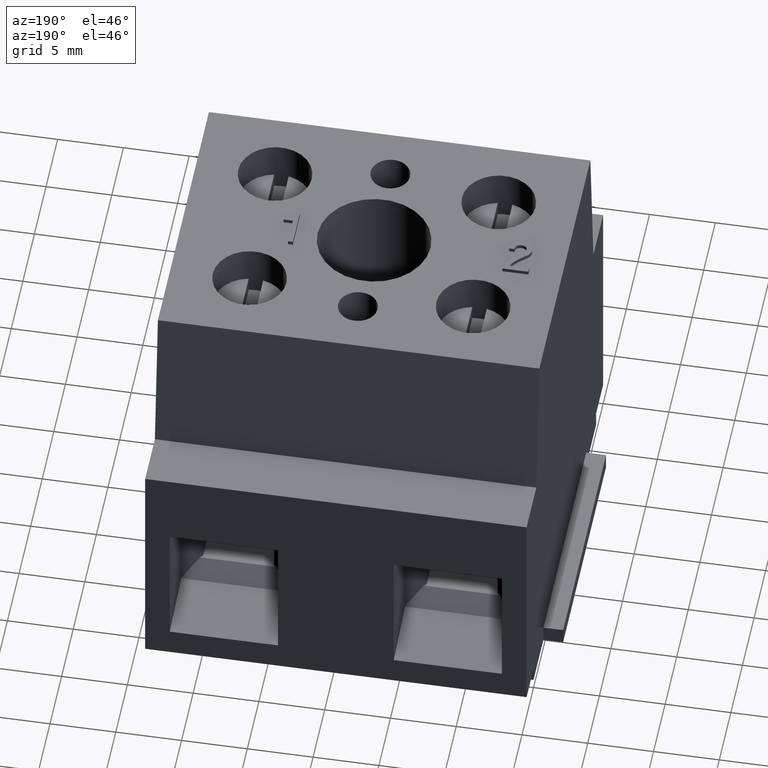
[diagram: clean part render]
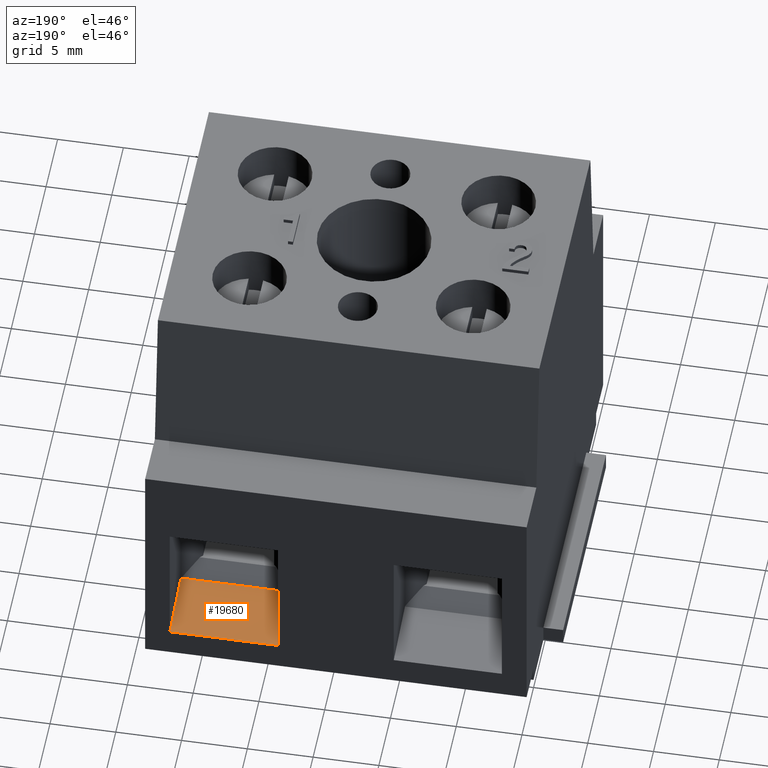
[diagram: same view with one face highlighted and labeled with its STEP entity id]
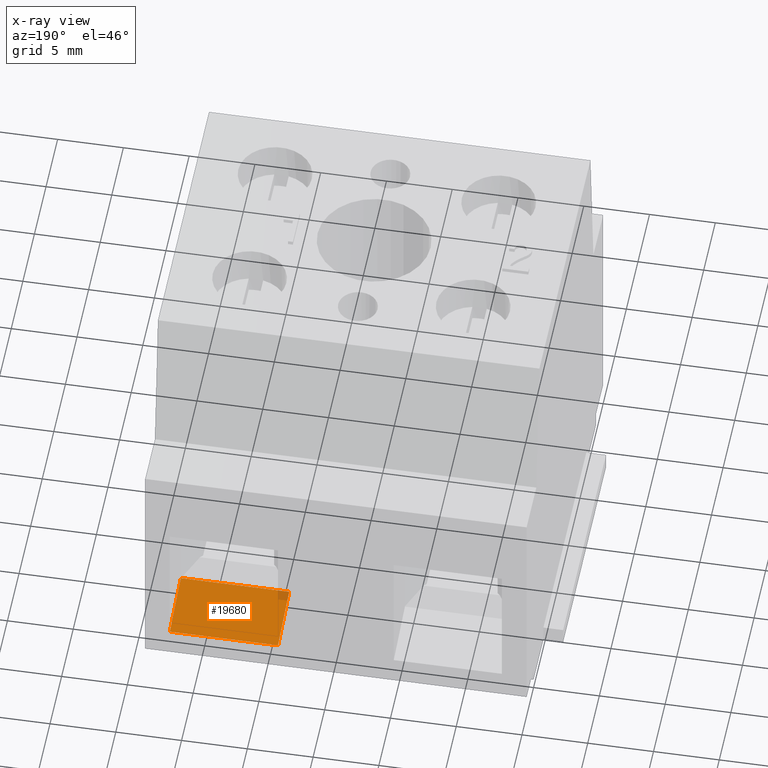
[diagram: x-ray of the same camera — body ghosted, the highlighted face saturated]
A machine part, auxiliary view. The second image highlights one B-rep face of the part: STEP entity #19680.
The next image is the same camera in x-ray: the body ghosted, the highlighted face saturated — about 2% of this face is hidden behind the body in this view.
In plain terms, the highlighted planar face has unit normal (0, -0.1736, -0.9848).
Its self-contained STEP definition (entity closure, byte-faithful):
#19290=CARTESIAN_POINT('',(44.0122471570511,7.16878338268663,
1.99999999999999));
#19300=DIRECTION('',(-0.984807753012208,-0.17364817766693,0.));
#19310=DIRECTION('',(0.17364817766693,-0.984807753012208,0.));
#19320=AXIS2_PLACEMENT_3D('',#19290,#19300,#19310);
#19330=PLANE('',#19320);
#19340=CARTESIAN_POINT('',(43.9963182031141,7.25912096955474,0.));
#19350=DIRECTION('',(0.,0.,-1.));
#19360=VECTOR('',#19350,1.);
#19370=LINE('',#19340,#19360);
#19380=CARTESIAN_POINT('',(43.9963182031141,7.25912096955474,10.1));
#19390=VERTEX_POINT('',#19380);
#19400=CARTESIAN_POINT('',(43.9963182031141,7.25912096955472,1.875));
#19410=VERTEX_POINT('',#19400);
#19420=EDGE_CURVE('',#19390,#19410,#19370,.T.);
#19430=ORIENTED_EDGE('',*,*,#19420,.T.);
#19440=CARTESIAN_POINT('',(45.2724815496615,0.0216389834178798,10.1));
#19450=DIRECTION('',(0.17364817766693,-0.984807753012208,0.));
#19460=VECTOR('',#19450,1.);
#19470=LINE('',#19440,#19460);
#19480=CARTESIAN_POINT('',(43.1455405211958,12.0841209695547,10.1));
#19490=VERTEX_POINT('',#19480);
#19500=EDGE_CURVE('',#19490,#19390,#19470,.T.);
#19510=ORIENTED_EDGE('',*,*,#19500,.T.);
#19520=CARTESIAN_POINT('',(43.1455405211958,12.0841209695547,0.));
#19530=DIRECTION('',(0.,0.,-1.));
#19540=VECTOR('',#19530,1.);
#19550=LINE('',#19520,#19540);
#19560=CARTESIAN_POINT('',(43.1455405211958,12.0841209695547,1.875));
#19570=VERTEX_POINT('',#19560);
#19580=EDGE_CURVE('',#19490,#19570,#19550,.T.);
#19590=ORIENTED_EDGE('',*,*,#19580,.F.);
#19600=CARTESIAN_POINT('',(45.2724815496615,0.0216389834178798,1.875));
#19610=DIRECTION('',(-0.17364817766693,0.984807753012208,0.));
#19620=VECTOR('',#19610,1.);
#19630=LINE('',#19600,#19620);
#19640=EDGE_CURVE('',#19410,#19570,#19630,.T.);
#19650=ORIENTED_EDGE('',*,*,#19640,.T.);
#19660=EDGE_LOOP('',(#19650,#19590,#19510,#19430));
#19670=FACE_OUTER_BOUND('',#19660,.T.);
#19680=ADVANCED_FACE('',(#19670),#19330,.F.);